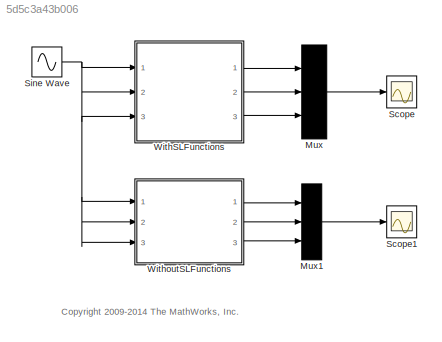
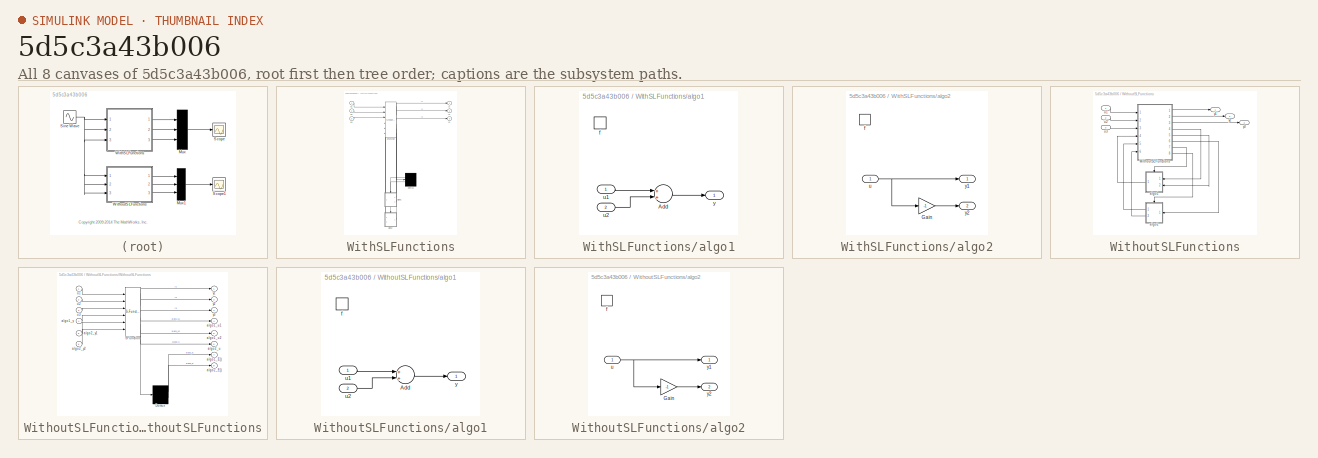
[diagram: thumbnail index - all 8 canvases of the model, root first then tree order]
MODEL slx_5d5c3a43b006
KIND model
CONFIG AbsTol = auto
CONFIG EnableMultiTasking = on
CONFIG FixedStep = .01
CONFIG MaxStep = auto
CONFIG MinStep = auto
CONFIG RelTol = 1e-3
CONFIG SampleTimeConstraint = Unconstrained
CONFIG Solver = FixedStepDiscrete
CONFIG SolverName = FixedStepDiscrete
CONFIG StartTime = 0.0
CONFIG StopTime = 10.0
BLOCK [Mux] Mux
  DisplayOption = bar
  Inputs = 3
  Ports = [3, 1]
BLOCK [Mux] Mux1
  DisplayOption = bar
  Inputs = 3
  Ports = [3, 1]
BLOCK [Scope] Scope
  NumInputPorts = 1
  Ports = [1]
  ScopeSpecificationString = C++SS(StrPVP('Location','[411, 321, 735, 560]'),StrPVP('Open','off'),MxPVP('AxesTitles',53,'struct(''axes1'',''%<SignalLabel>'')'),MxPVP('ScopeGraphics',56,'struct(''FigureColor'',''[0.5 0.5 0.5]'',''AxesColor'',''[0 0 0]'',''AxesTickColor'',''[1 1 1]'',''LineColors'',''[1 1 0;1 0 1;0 1 1;1 0 0;0 1 0;0 0 1]'',''LineStyles'',''-|-|-|-|-|-'',''LineWidths'',''[0.5 0.5 0.5 0.5 0.5 0.5]'',''MarkerStyle...<+295ch>
BLOCK [Scope] Scope1
  NumInputPorts = 1
  Ports = [1]
  ScopeSpecificationString = C++SS(StrPVP('Location','[411, 321, 735, 560]'),StrPVP('Open','off'),MxPVP('AxesTitles',53,'struct(''axes1'',''%<SignalLabel>'')'),MxPVP('ScopeGraphics',56,'struct(''FigureColor'',''[0.5 0.5 0.5]'',''AxesColor'',''[0 0 0]'',''AxesTickColor'',''[1 1 1]'',''LineColors'',''[1 1 0;1 0 1;0 1 1;1 0 0;0 1 0;0 0 1]'',''LineStyles'',''-|-|-|-|-|-'',''LineWidths'',''[0.5 0.5 0.5 0.5 0.5 0.5]'',''MarkerStyle...<+327ch>
BLOCK [Sin] Sine Wave
  Ports = [0, 1]
  SampleTime = 0
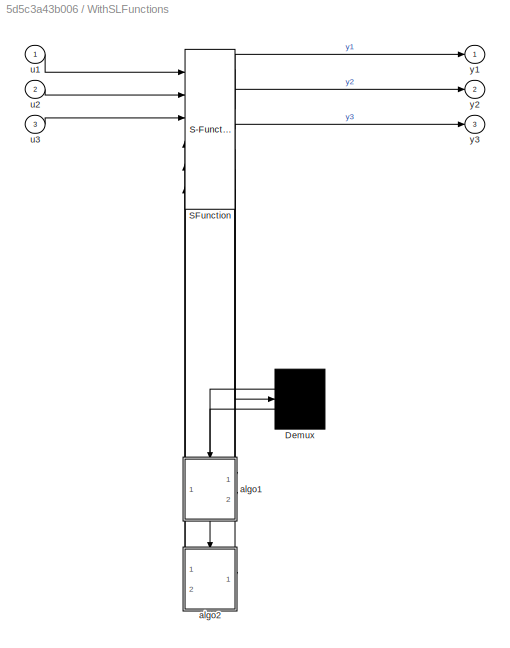
BLOCK [SubSystem] WithSLFunctions
  ErrorFcn = Stateflow.Translate.translate
  PermitHierarchicalResolution = ExplicitOnly
  Ports = [3, 3]
  RequestExecContextInheritance = off
  SFBlockType = Chart
  TreatAsAtomicUnit = on
  Variant = off
BLOCK [Demux] WithSLFunctions/ Demux 
  Outputs = 2
  Ports = [1, 2]
BLOCK [S-Function] WithSLFunctions/ SFunction 
  EnableBusSupport = off
  FunctionName = sf_sfun
  PortCounts = [6 7]
  Ports = [6, 7]
  SFcnIsStateOwnerBlock = off
  SFunctionDeploymentMode = off
  Tag = Stateflow S-Function sf_slalgo 1
BLOCK [SubSystem] WithSLFunctions/algo1
  Ports = [2, 1, 0, 1]
  PreDeleteFcn = Stateflow.SLINSF.SimulinkMan.removePreDeleteFcn
  RequestExecContextInheritance = off
  UndoDeleteFcn = Stateflow.SLINSF.SimulinkMan.restorePreDeleteFcn
  Variant = off
BLOCK [Sum] WithSLFunctions/algo1/Add
  InputSameDT = off
  OutDataTypeStr = Inherit: Inherit via internal rule
  Ports = [2, 1]
  SaturateOnIntegerOverflow = off
BLOCK [TriggerPort] WithSLFunctions/algo1/f
  CopyFcn = Stateflow.SLINSF.SimulinkMan.removeBlockPreDeleteFcn
  Ports = []
  PreDeleteFcn = Stateflow.SLINSF.SimulinkMan.unsafePredeleteFcn
  TriggerType = function-call
  VariantControl = (inherit)
BLOCK [Inport] WithSLFunctions/algo1/u1
  IconDisplay = Port number
BLOCK [Inport] WithSLFunctions/algo1/u2
  IconDisplay = Port number
  Port = 2
BLOCK [Outport] WithSLFunctions/algo1/y
  IconDisplay = Port number
BLOCK [SubSystem] WithSLFunctions/algo2
  Ports = [1, 2, 0, 1]
  PreDeleteFcn = Stateflow.SLINSF.SimulinkMan.removePreDeleteFcn
  RequestExecContextInheritance = off
  UndoDeleteFcn = Stateflow.SLINSF.SimulinkMan.restorePreDeleteFcn
  Variant = off
BLOCK [Gain] WithSLFunctions/algo2/Gain
  Gain = -1
  OutDataTypeStr = Inherit: Inherit via internal rule
  ParamDataTypeStr = Inherit: Inherit via internal rule
  SaturateOnIntegerOverflow = off
BLOCK [TriggerPort] WithSLFunctions/algo2/f
  CopyFcn = Stateflow.SLINSF.SimulinkMan.removeBlockPreDeleteFcn
  Ports = []
  PreDeleteFcn = Stateflow.SLINSF.SimulinkMan.unsafePredeleteFcn
  TriggerType = function-call
  VariantControl = (inherit)
BLOCK [Inport] WithSLFunctions/algo2/u
  IconDisplay = Port number
BLOCK [Outport] WithSLFunctions/algo2/y1
  IconDisplay = Port number
BLOCK [Outport] WithSLFunctions/algo2/y2
  IconDisplay = Port number
  Port = 2
BLOCK [Inport] WithSLFunctions/u1
  IconDisplay = Port number
BLOCK [Inport] WithSLFunctions/u2
  IconDisplay = Port number
  Port = 2
BLOCK [Inport] WithSLFunctions/u3
  IconDisplay = Port number
  Port = 3
BLOCK [Outport] WithSLFunctions/y1
  IconDisplay = Port number
BLOCK [Outport] WithSLFunctions/y2
  IconDisplay = Port number
  Port = 2
BLOCK [Outport] WithSLFunctions/y3
  IconDisplay = Port number
  Port = 3
BLOCK [SubSystem] WithoutSLFunctions
  Ports = [3, 3]
  RequestExecContextInheritance = off
  Variant = off
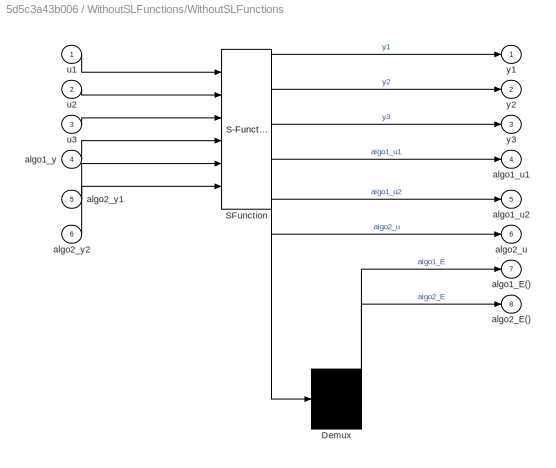
BLOCK [SubSystem] WithoutSLFunctions/WithoutSLFunctions
  ErrorFcn = Stateflow.Translate.translate
  PermitHierarchicalResolution = ExplicitOnly
  Ports = [6, 8]
  RequestExecContextInheritance = off
  SFBlockType = Chart
  TreatAsAtomicUnit = on
  Variant = off
BLOCK [Demux] WithoutSLFunctions/WithoutSLFunctions/ Demux 
  Outputs = 2
  Ports = [1, 2]
BLOCK [S-Function] WithoutSLFunctions/WithoutSLFunctions/ SFunction 
  EnableBusSupport = off
  FunctionName = sf_sfun
  PortCounts = [6 7]
  Ports = [6, 7]
  SFcnIsStateOwnerBlock = off
  SFunctionDeploymentMode = off
  Tag = Stateflow S-Function sf_slalgo 2
BLOCK [Outport] WithoutSLFunctions/WithoutSLFunctions/algo1_E()
  IconDisplay = Port number
  Port = 7
BLOCK [Outport] WithoutSLFunctions/WithoutSLFunctions/algo1_u1
  IconDisplay = Port number
  Port = 4
BLOCK [Outport] WithoutSLFunctions/WithoutSLFunctions/algo1_u2
  IconDisplay = Port number
  Port = 5
BLOCK [Inport] WithoutSLFunctions/WithoutSLFunctions/algo1_y
  IconDisplay = Port number
  Port = 4
BLOCK [Outport] WithoutSLFunctions/WithoutSLFunctions/algo2_E()
  IconDisplay = Port number
  Port = 8
BLOCK [Outport] WithoutSLFunctions/WithoutSLFunctions/algo2_u
  IconDisplay = Port number
  Port = 6
BLOCK [Inport] WithoutSLFunctions/WithoutSLFunctions/algo2_y1
  IconDisplay = Port number
  Port = 5
BLOCK [Inport] WithoutSLFunctions/WithoutSLFunctions/algo2_y2
  IconDisplay = Port number
  Port = 6
BLOCK [Inport] WithoutSLFunctions/WithoutSLFunctions/u1
  IconDisplay = Port number
BLOCK [Inport] WithoutSLFunctions/WithoutSLFunctions/u2
  IconDisplay = Port number
  Port = 2
BLOCK [Inport] WithoutSLFunctions/WithoutSLFunctions/u3
  IconDisplay = Port number
  Port = 3
BLOCK [Outport] WithoutSLFunctions/WithoutSLFunctions/y1
  IconDisplay = Port number
BLOCK [Outport] WithoutSLFunctions/WithoutSLFunctions/y2
  IconDisplay = Port number
  Port = 2
BLOCK [Outport] WithoutSLFunctions/WithoutSLFunctions/y3
  IconDisplay = Port number
  Port = 3
BLOCK [SubSystem] WithoutSLFunctions/algo1
  Ports = [2, 1, 0, 1]
  PreDeleteFcn = sfprivate('simfcn_man','removePreDeleteFcn')
  RequestExecContextInheritance = off
  UndoDeleteFcn = sfprivate('simfcn_man','restorePreDeleteFcn')
  Variant = off
BLOCK [Sum] WithoutSLFunctions/algo1/Add
  InputSameDT = off
  OutDataTypeStr = Inherit: Inherit via internal rule
  Ports = [2, 1]
  SaturateOnIntegerOverflow = off
BLOCK [TriggerPort] WithoutSLFunctions/algo1/f
  CopyFcn = set_param(gcbh,'PreDeleteFcn','')
  Ports = []
  TriggerType = function-call
  VariantControl = (inherit)
BLOCK [Inport] WithoutSLFunctions/algo1/u1
  IconDisplay = Port number
BLOCK [Inport] WithoutSLFunctions/algo1/u2
  IconDisplay = Port number
  Port = 2
BLOCK [Outport] WithoutSLFunctions/algo1/y
  IconDisplay = Port number
BLOCK [SubSystem] WithoutSLFunctions/algo2
  Ports = [1, 2, 0, 1]
  PreDeleteFcn = sfprivate('simfcn_man','removePreDeleteFcn')
  RequestExecContextInheritance = off
  UndoDeleteFcn = sfprivate('simfcn_man','restorePreDeleteFcn')
  Variant = off
BLOCK [Gain] WithoutSLFunctions/algo2/Gain
  Gain = -1
  OutDataTypeStr = Inherit: Inherit via internal rule
  ParamDataTypeStr = Inherit: Inherit via internal rule
  SaturateOnIntegerOverflow = off
BLOCK [TriggerPort] WithoutSLFunctions/algo2/f
  CopyFcn = set_param(gcbh,'PreDeleteFcn','')
  Ports = []
  TriggerType = function-call
  VariantControl = (inherit)
BLOCK [Inport] WithoutSLFunctions/algo2/u
  IconDisplay = Port number
BLOCK [Outport] WithoutSLFunctions/algo2/y1
  IconDisplay = Port number
BLOCK [Outport] WithoutSLFunctions/algo2/y2
  IconDisplay = Port number
  Port = 2
BLOCK [Inport] WithoutSLFunctions/u1
  IconDisplay = Port number
BLOCK [Inport] WithoutSLFunctions/u2
  IconDisplay = Port number
  Port = 2
BLOCK [Inport] WithoutSLFunctions/u3
  IconDisplay = Port number
  Port = 3
BLOCK [Outport] WithoutSLFunctions/y1
  IconDisplay = Port number
BLOCK [Outport] WithoutSLFunctions/y2
  IconDisplay = Port number
  Port = 2
BLOCK [Outport] WithoutSLFunctions/y3
  IconDisplay = Port number
  Port = 3
ANNOTATION (root): <copyright redacted>
LINE Mux1:1 -> Scope1:1
LINE Mux:1 -> Scope:1
NET Sine Wave:1 -> WithSLFunctions:1, WithSLFunctions:2, WithSLFunctions:3, WithoutSLFunctions:1, WithoutSLFunctions:2, WithoutSLFunctions:3
LINE WithSLFunctions:1 -> Mux:1
LINE WithSLFunctions:2 -> Mux:2
LINE WithSLFunctions:3 -> Mux:3
LINE WithoutSLFunctions/WithoutSLFunctions:1 -> WithoutSLFunctions/y1:1
LINE WithoutSLFunctions/WithoutSLFunctions:2 -> WithoutSLFunctions/y2:1
LINE WithoutSLFunctions/WithoutSLFunctions:3 -> WithoutSLFunctions/y3:1
LINE WithoutSLFunctions/WithoutSLFunctions:4 -> WithoutSLFunctions/algo1:1
LINE WithoutSLFunctions/WithoutSLFunctions:5 -> WithoutSLFunctions/algo1:2
LINE WithoutSLFunctions/WithoutSLFunctions:6 -> WithoutSLFunctions/algo2:1
LINE WithoutSLFunctions/WithoutSLFunctions:7 -> WithoutSLFunctions/algo1:trigger
LINE WithoutSLFunctions/WithoutSLFunctions:8 -> WithoutSLFunctions/algo2:trigger
LINE WithoutSLFunctions/algo1/Add:1 -> WithoutSLFunctions/algo1/y:1
LINE WithoutSLFunctions/algo1/u1:1 -> WithoutSLFunctions/algo1/Add:1
LINE WithoutSLFunctions/algo1/u2:1 -> WithoutSLFunctions/algo1/Add:2
LINE WithoutSLFunctions/algo1:1 -> WithoutSLFunctions/WithoutSLFunctions:4
LINE WithoutSLFunctions/algo2/Gain:1 -> WithoutSLFunctions/algo2/y2:1
NET WithoutSLFunctions/algo2/u:1 -> WithoutSLFunctions/algo2/Gain:1, WithoutSLFunctions/algo2/y1:1
LINE WithoutSLFunctions/algo2:1 -> WithoutSLFunctions/WithoutSLFunctions:5
LINE WithoutSLFunctions/algo2:2 -> WithoutSLFunctions/WithoutSLFunctions:6
LINE WithoutSLFunctions/u1:1 -> WithoutSLFunctions/WithoutSLFunctions:1
LINE WithoutSLFunctions/u2:1 -> WithoutSLFunctions/WithoutSLFunctions:2
LINE WithoutSLFunctions/u3:1 -> WithoutSLFunctions/WithoutSLFunctions:3
LINE WithoutSLFunctions:1 -> Mux1:1
LINE WithoutSLFunctions:2 -> Mux1:2
LINE WithoutSLFunctions:3 -> Mux1:3
note: NET lines group one-source signal fan-out (src -> all destinations, sorted); 1:1 wires keep LINE
CHART WithSLFunctions states=3 transitions=1
  STATE_LABEL 'A\ndu:\ny1 = algo1(u1,u2)*3;\n[y2,y3] = algo2(u3);'
  STATE_LABEL 'y = algo1(u1,u2)'
  STATE_LABEL '[y1,y2] = algo2(u)'
CHART WithoutSLFunctions/WithoutSLFunctions states=1 transitions=1
  STATE_LABEL 'A\ndu:\n// y1 = algo1(u1,u2)*3\nalgo1_u1 = u1;\nalgo1_u2 = u2;\nsend(algo1_E);\ny1 = algo1_y*3;\n\n//[y2,y3] = algo2(u3);\nalgo2_u = u3;\nsend(algo2_E);\ny2 = algo2_y1;\ny3 = algo2_y2;'
